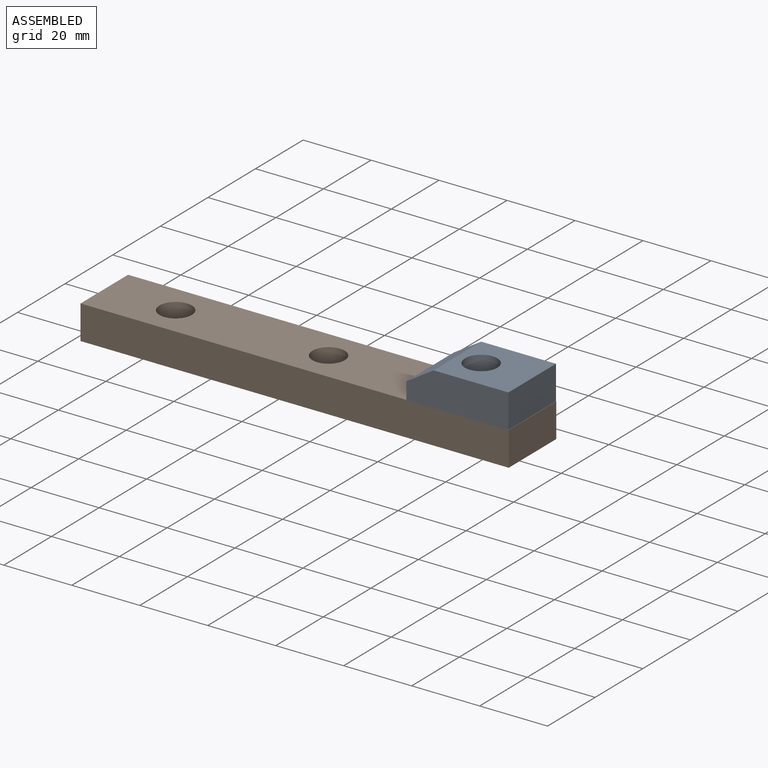
[diagram: assembled view]
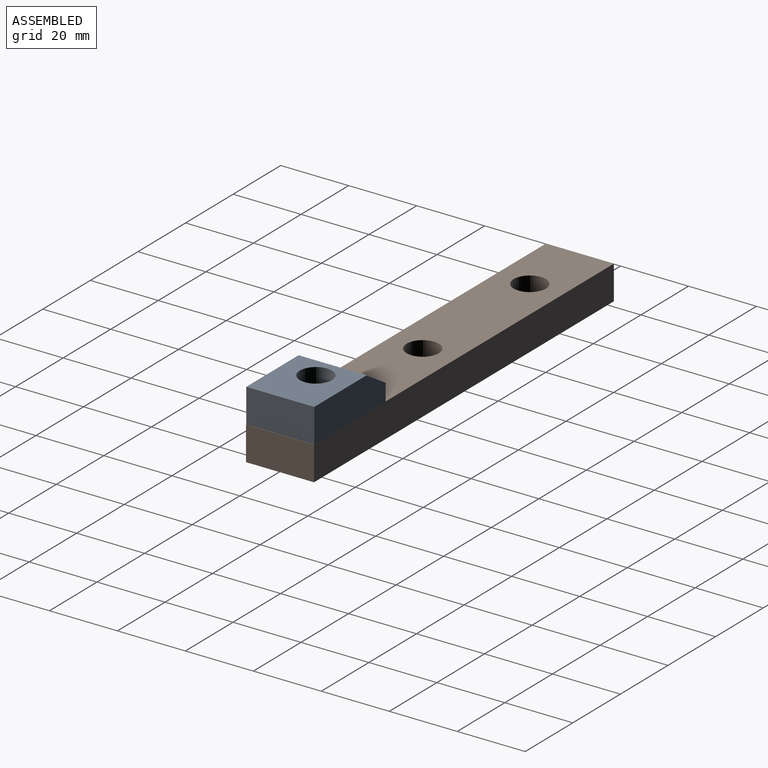
[diagram: assembled view, second angle]
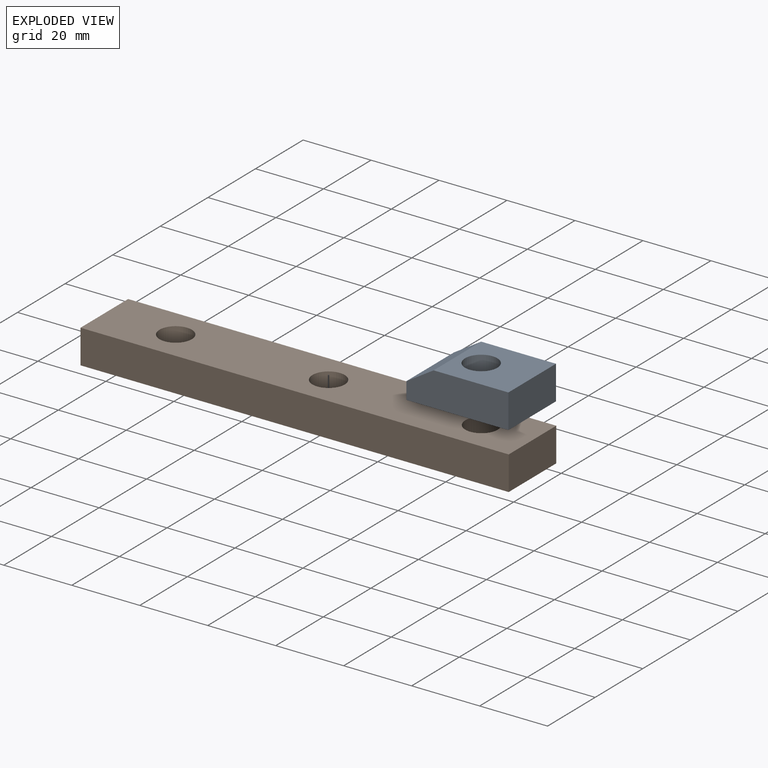
[diagram: exploded view]
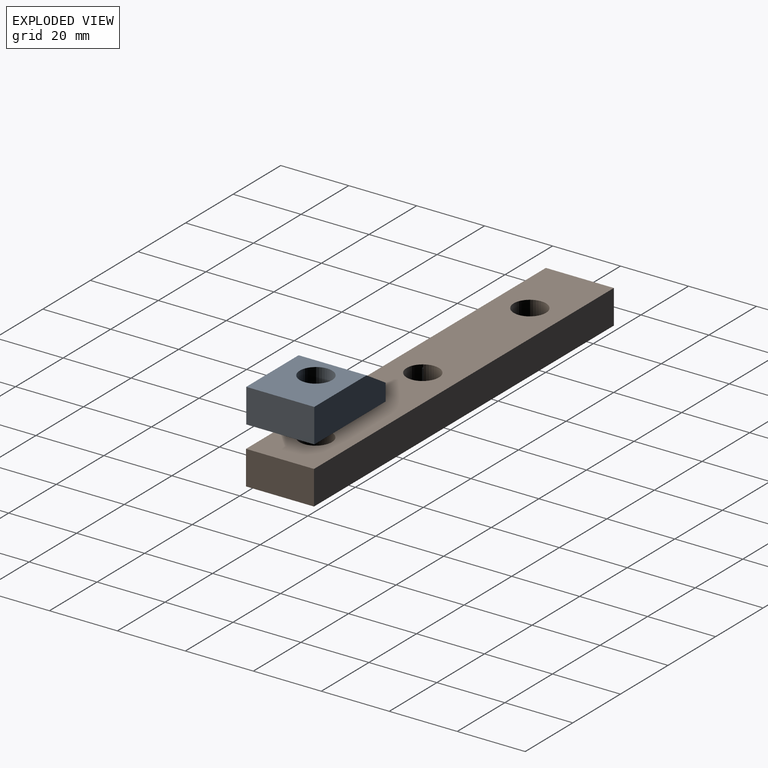
[diagram: exploded view, second angle]
ASSEMBLY  parts=2 mates=2
PART A: 10 faces, bbox 30x20x10 mm
  f0: cylinder r=2.75mm len=5.5mm, axis (0,0,-1), area 51.8mm2, adj f1,f8
  f1: plane 30x20mm, normal (0,0,-1), area 576.2mm2, adj f0,f2,f5,f6,f7
  f2: plane 20x10mm, normal (1,0,0), area 200mm2, adj f1,f3,f6,f7
  f3: plane 22x20mm, normal (0,0,1), area 369.1mm2, adj f2,f4,f6,f7,f9
  f4: plane 20x8mm, normal (-0.53,0,0.85), area 188.7mm2, adj f3,f5,f6,f7
  f5: plane 20x5mm, normal (-1,0,0), area 100mm2, adj f1,f4,f6,f7
  f6: plane 30x10mm, normal (0,1,0), area 280mm2, adj f1,f2,f3,f4,f5
  f7: plane 30x10mm, normal (0,-1,0), area 280mm2, adj f1,f2,f3,f4,f5
  f8: plane 9.5x9.5mm, normal (0,0,1), area 47.1mm2, adj f0,f9
  f9: cylinder r=4.75mm len=9.5mm, axis (0,0,1), area 208.9mm2, adj f3,f8
PART B: 15 faces, bbox 126x20x10 mm
  f0: cylinder r=2.75mm len=5.5mm, axis (0,0,1), area 79.5mm2, adj f5,f13
  f1: cylinder r=2.75mm len=5.5mm, axis (0,0,1), area 79.5mm2, adj f5,f11
  f2: cylinder r=2.75mm len=5.5mm, axis (0,0,1), area 79.5mm2, adj f5,f9
  f3: plane 126x20mm, normal (0,0,1), area 2307.4mm2, adj f4,f6,f7,f8,f10,f12,f14
  f4: plane 20x10mm, normal (-1,0,0), area 200mm2, adj f3,f5,f7,f8
  f5: plane 126x20mm, normal (0,0,-1), area 2448.7mm2, adj f0,f1,f2,f4,f6,f7,f8
  f6: plane 20x10mm, normal (1,0,0), area 200mm2, adj f3,f5,f7,f8
  f7: plane 126x10mm, normal (0,-1,0), area 1260mm2, adj f3,f4,f5,f6
  f8: plane 126x10mm, normal (0,1,0), area 1260mm2, adj f3,f4,f5,f6
  f9: plane 9.5x9.5mm, normal (0,0,1), area 47.1mm2, adj f2,f10
  f10: cylinder r=4.75mm len=9.5mm, axis (0,0,1), area 161.2mm2, adj f3,f9
  f11: plane 9.5x9.5mm, normal (0,0,1), area 47.1mm2, adj f1,f12
  f12: cylinder r=4.75mm len=9.5mm, axis (0,0,1), area 161.2mm2, adj f3,f11
  f13: plane 9.5x9.5mm, normal (0,0,1), area 47.1mm2, adj f0,f14
  f14: cylinder r=4.75mm len=9.5mm, axis (0,0,1), area 161.2mm2, adj f3,f13
PLACE A t=(-4.94,0.55,-10.48)mm
PLACE B t=(-4.84,20.55,-22.29)mm
MATE parallel A.f9 <-> B.f3  axis (0,0,-1) through (43.06,10.55,-17.29)mm
MATE parallel A.f7 <-> B.f7  axis (0,-1,0) through (43.06,0.55,-17.29)mm
